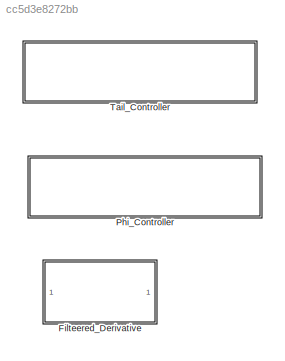
MODEL slx_cc5d3e8272bb
KIND library
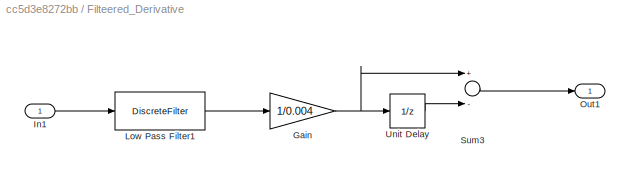
BLOCK [SubSystem] Filteered_Derivative
  Ports = [1, 1]
  RequestExecContextInheritance = off
BLOCK [Gain] Filteered_Derivative/Gain
  Gain = 1/0.004
  OutDataTypeStr = Inherit: Inherit via internal rule
  ParamDataTypeStr = Inherit: Inherit via internal rule
  SaturateOnIntegerOverflow = off
BLOCK [Inport] Filteered_Derivative/In1
  IconDisplay = Port number
BLOCK [DiscreteFilter] Filteered_Derivative/Low Pass Filter1
  Denominator = [1 -0.8]
  InputPortMap = u0
  Numerator = [.2]
  Ports = [1, 1]
BLOCK [Outport] Filteered_Derivative/Out1
  IconDisplay = Port number
BLOCK [Sum] Filteered_Derivative/Sum3
  InputSameDT = off
  Inputs = +-
  OutDataTypeStr = Inherit: Inherit via internal rule
  Ports = [2, 1]
  SaturateOnIntegerOverflow = off
BLOCK [UnitDelay] Filteered_Derivative/Unit Delay
  InputProcessing = Elements as channels (sample based)
  SampleTime = -1
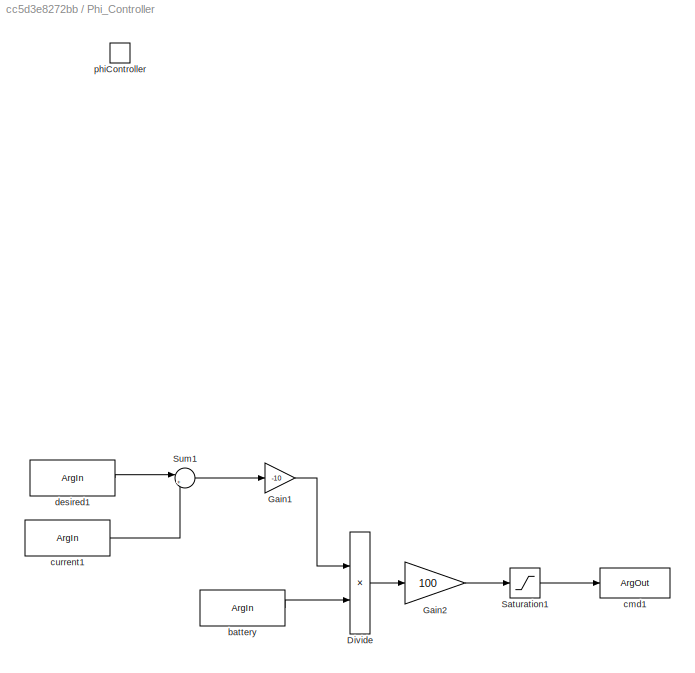
BLOCK [SubSystem] Phi_Controller
  Ports = [0, 0, 0, 1]
  RequestExecContextInheritance = off
  TreatAsAtomicUnit = on
BLOCK [Product] Phi_Controller/Divide
  InputSameDT = off
  Inputs = */
  OutDataTypeStr = Inherit: Inherit via internal rule
  Ports = [2, 1]
  RndMeth = Floor
  SaturateOnIntegerOverflow = off
BLOCK [Gain] Phi_Controller/Gain1
  Gain = -10
  OutDataTypeStr = Inherit: Inherit via internal rule
  ParamDataTypeStr = Inherit: Inherit via internal rule
  SaturateOnIntegerOverflow = off
BLOCK [Gain] Phi_Controller/Gain2
  Gain = 100
  OutDataTypeStr = Inherit: Inherit via internal rule
  ParamDataTypeStr = Inherit: Inherit via internal rule
  SaturateOnIntegerOverflow = off
BLOCK [Saturate] Phi_Controller/Saturation1
  InputPortMap = u0
  LowerLimit = -100
  OutDataTypeStr = single
  Ports = [1, 1]
  UpperLimit = 100
BLOCK [Sum] Phi_Controller/Sum1
  IconShape = round
  InputSameDT = off
  Inputs = |+-
  OutDataTypeStr = Inherit: Inherit via internal rule
  Ports = [2, 1]
  SaturateOnIntegerOverflow = off
BLOCK [ArgIn] Phi_Controller/battery
  ArgumentName = battery
  LockScale = on
  OutDataTypeStr = single
  Port = 3
BLOCK [ArgOut] Phi_Controller/cmd1
  ArgumentName = cmd
  OutDataTypeStr = single
BLOCK [ArgIn] Phi_Controller/current1
  ArgumentName = current
  LockScale = on
  OutDataTypeStr = single
  Port = 2
BLOCK [ArgIn] Phi_Controller/desired1
  ArgumentName = desired
  OutDataTypeStr = single
BLOCK [TriggerPort] Phi_Controller/phiController
  FunctionName = phiController
  IsSimulinkFunction = on
  Ports = []
  StatesWhenEnabling = held
  TriggerType = function-call
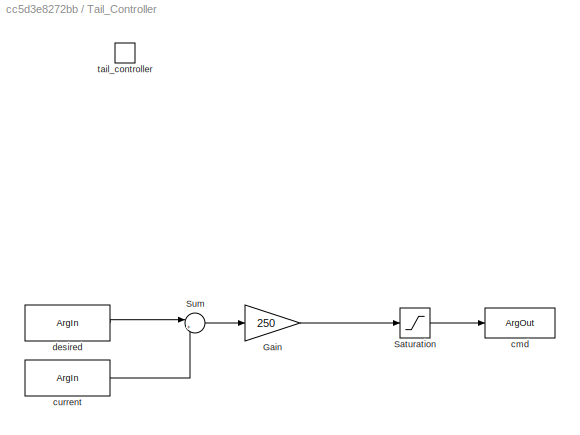
BLOCK [SubSystem] Tail_Controller
  Ports = [0, 0, 0, 1]
  RequestExecContextInheritance = off
  TreatAsAtomicUnit = on
BLOCK [Gain] Tail_Controller/Gain
  Gain = 250
  OutDataTypeStr = Inherit: Inherit via internal rule
  ParamDataTypeStr = Inherit: Inherit via internal rule
  SaturateOnIntegerOverflow = off
BLOCK [Saturate] Tail_Controller/Saturation
  InputPortMap = u0
  LowerLimit = -100
  OutDataTypeStr = single
  Ports = [1, 1]
  UpperLimit = 100
BLOCK [Sum] Tail_Controller/Sum
  IconShape = round
  InputSameDT = off
  Inputs = |+-
  OutDataTypeStr = Inherit: Inherit via internal rule
  Ports = [2, 1]
  SaturateOnIntegerOverflow = off
BLOCK [ArgOut] Tail_Controller/cmd
  ArgumentName = cmd
  OutDataTypeStr = single
BLOCK [ArgIn] Tail_Controller/current
  ArgumentName = current
  LockScale = on
  OutDataTypeStr = single
BLOCK [ArgIn] Tail_Controller/desired
  ArgumentName = desired
  OutDataTypeStr = single
  Port = 2
BLOCK [TriggerPort] Tail_Controller/tail_controller
  FunctionName = tail_controller
  IsSimulinkFunction = on
  Ports = []
  StatesWhenEnabling = held
  TriggerType = function-call
NET Filteered_Derivative/Gain:1 -> Filteered_Derivative/Sum3:1, Filteered_Derivative/Unit Delay:1
LINE Filteered_Derivative/In1:1 -> Filteered_Derivative/Low Pass Filter1:1
LINE Filteered_Derivative/Low Pass Filter1:1 -> Filteered_Derivative/Gain:1
LINE Filteered_Derivative/Sum3:1 -> Filteered_Derivative/Out1:1
LINE Filteered_Derivative/Unit Delay:1 -> Filteered_Derivative/Sum3:2
LINE Phi_Controller/Divide:1 -> Phi_Controller/Gain2:1
LINE Phi_Controller/Gain1:1 -> Phi_Controller/Divide:1
LINE Phi_Controller/Gain2:1 -> Phi_Controller/Saturation1:1
LINE Phi_Controller/Saturation1:1 -> Phi_Controller/cmd1:1
LINE Phi_Controller/Sum1:1 -> Phi_Controller/Gain1:1
LINE Phi_Controller/battery:1 -> Phi_Controller/Divide:2
LINE Phi_Controller/current1:1 -> Phi_Controller/Sum1:2
LINE Phi_Controller/desired1:1 -> Phi_Controller/Sum1:1
LINE Tail_Controller/Gain:1 -> Tail_Controller/Saturation:1
LINE Tail_Controller/Saturation:1 -> Tail_Controller/cmd:1
LINE Tail_Controller/Sum:1 -> Tail_Controller/Gain:1
LINE Tail_Controller/current:1 -> Tail_Controller/Sum:2
LINE Tail_Controller/desired:1 -> Tail_Controller/Sum:1
note: NET lines group one-source signal fan-out (src -> all destinations, sorted); 1:1 wires keep LINE
